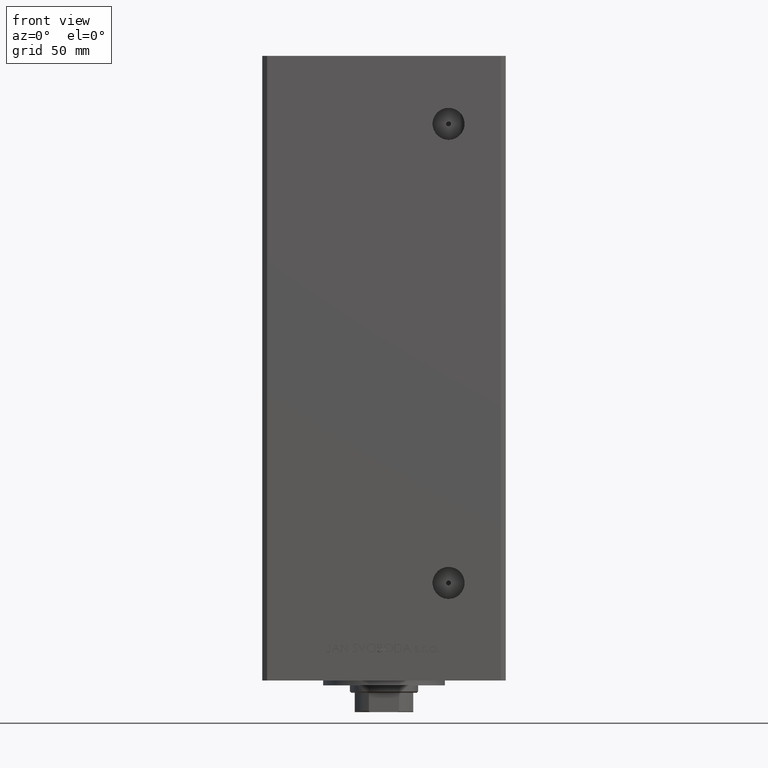
[diagram: clean part render]
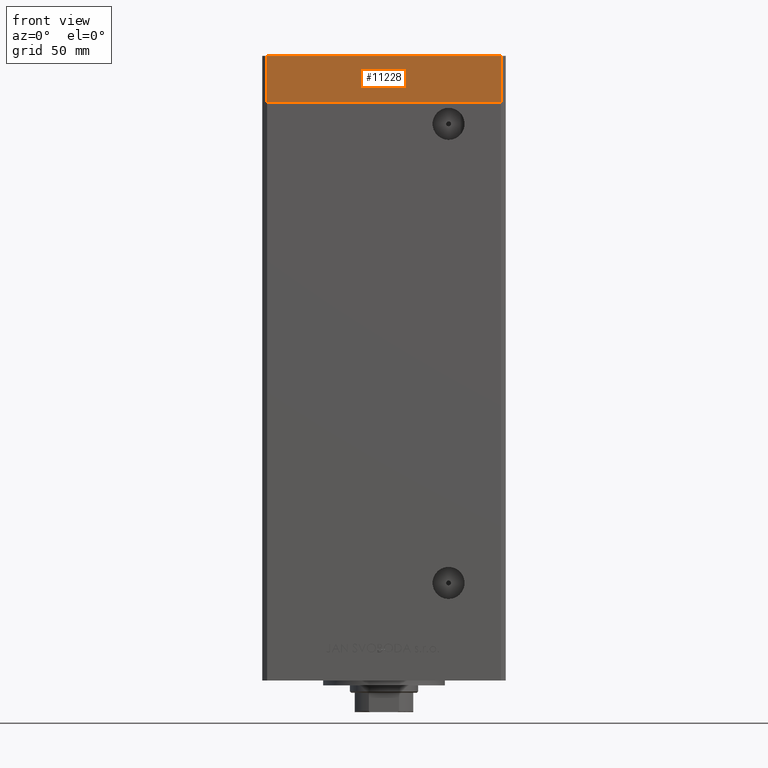
[diagram: same view with one face highlighted and labeled with its STEP entity id]
A machine part, front view. The second image highlights one B-rep face of the part: STEP entity #11228.
In plain terms, the highlighted planar face has unit normal (0, -1, 0).
Its self-contained STEP definition (entity closure, byte-faithful):
#589 = EDGE_CURVE ( 'NONE', #44558, #3812, #36498, .T. ) ;
#1400 = VERTEX_POINT ( 'NONE', #9687 ) ;
#3812 = VERTEX_POINT ( 'NONE', #49341 ) ;
#4286 = CARTESIAN_POINT ( 'NONE',  ( -47.99999999999999289, -43.50000000000001421, -19.00000000000000000 ) ) ;
#4386 = CARTESIAN_POINT ( 'NONE',  ( -47.99999999999999289, -43.50000000000001421, 0.000000000000000000 ) ) ;
#4479 = EDGE_CURVE ( 'NONE', #8007, #1400, #4649, .T. ) ;
#4649 = LINE ( 'NONE', #36287, #46233 ) ;
#5118 = CARTESIAN_POINT ( 'NONE',  ( -47.99999999999999289, -43.50000000000001421, 0.000000000000000000 ) ) ;
#6229 = DIRECTION ( 'NONE',  ( 0.000000000000000000, 0.000000000000000000, 1.000000000000000000 ) ) ;
#8007 = VERTEX_POINT ( 'NONE', #4286 ) ;
#8674 = DIRECTION ( 'NONE',  ( 1.000000000000000000, 0.000000000000000000, 0.000000000000000000 ) ) ;
#9232 = AXIS2_PLACEMENT_3D ( 'NONE', #30609, #11100, #34391 ) ;
#9274 = CARTESIAN_POINT ( 'NONE',  ( -47.99999999999999289, -43.50000000000001421, -19.00000000000000000 ) ) ;
#9687 = CARTESIAN_POINT ( 'NONE',  ( 47.99999999999999289, -43.50000000000001421, -19.00000000000000000 ) ) ;
#10902 = LINE ( 'NONE', #34195, #19149 ) ;
#11100 = DIRECTION ( 'NONE',  ( 0.000000000000000000, -1.000000000000000000, 0.000000000000000000 ) ) ;
#11228 = ADVANCED_FACE ( 'NONE', ( #23499 ), #14893, .T. ) ;
#12225 = VECTOR ( 'NONE', #17238, 1000.000000000000000 ) ;
#14893 = PLANE ( 'NONE',  #9232 ) ;
#15673 = ORIENTED_EDGE ( 'NONE', *, *, #38258, .F. ) ;
#17238 = DIRECTION ( 'NONE',  ( 1.000000000000000000, 0.000000000000000000, 0.000000000000000000 ) ) ;
#19149 = VECTOR ( 'NONE', #29918, 1000.000000000000000 ) ;
#23499 = FACE_OUTER_BOUND ( 'NONE', #43810, .T. ) ;
#29133 = ORIENTED_EDGE ( 'NONE', *, *, #45481, .T. ) ;
#29918 = DIRECTION ( 'NONE',  ( 0.000000000000000000, 0.000000000000000000, 1.000000000000000000 ) ) ;
#30609 = CARTESIAN_POINT ( 'NONE',  ( -47.99999999999999289, -43.50000000000001421, -19.00000000000000000 ) ) ;
#34165 = ORIENTED_EDGE ( 'NONE', *, *, #4479, .T. ) ;
#34195 = CARTESIAN_POINT ( 'NONE',  ( 47.99999999999999289, -43.50000000000001421, -19.00000000000000000 ) ) ;
#34391 = DIRECTION ( 'NONE',  ( 0.000000000000000000, -0.000000000000000000, -1.000000000000000000 ) ) ;
#36287 = CARTESIAN_POINT ( 'NONE',  ( -47.99999999999999289, -43.50000000000001421, -19.00000000000000000 ) ) ;
#36498 = LINE ( 'NONE', #5118, #12225 ) ;
#37522 = VECTOR ( 'NONE', #6229, 1000.000000000000000 ) ;
#38258 = EDGE_CURVE ( 'NONE', #8007, #44558, #48288, .T. ) ;
#43810 = EDGE_LOOP ( 'NONE', ( #47139, #15673, #34165, #29133 ) ) ;
#44558 = VERTEX_POINT ( 'NONE', #4386 ) ;
#45481 = EDGE_CURVE ( 'NONE', #1400, #3812, #10902, .T. ) ;
#46233 = VECTOR ( 'NONE', #8674, 1000.000000000000000 ) ;
#47139 = ORIENTED_EDGE ( 'NONE', *, *, #589, .F. ) ;
#48288 = LINE ( 'NONE', #9274, #37522 ) ;
#49341 = CARTESIAN_POINT ( 'NONE',  ( 47.99999999999999289, -43.50000000000001421, 0.000000000000000000 ) ) ;